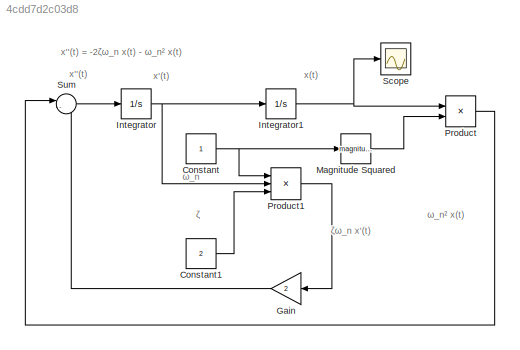
MODEL slx_4cdd7d2c03d8
KIND model
CONFIG AbsTol = auto
CONFIG EnableMultiTasking = off
CONFIG FixedStep = auto
CONFIG MaxStep = auto
CONFIG MinStep = auto
CONFIG RelTol = 1e-3
CONFIG SampleTimeConstraint = Unconstrained
CONFIG SolverName = VariableStepAuto
CONFIG StartTime = 0.0
CONFIG StopTime = 10.0
BLOCK [Constant] Constant
BLOCK [Constant] Constant1
  Value = 2
BLOCK [Gain] Gain
  Gain = 2
BLOCK [Integrator] Integrator
BLOCK [Integrator] Integrator1
  InitialCondition = 5
BLOCK [Math] Magnitude Squared
  Operator = magnitude^2
BLOCK [Product] Product
BLOCK [Product] Product1
  Inputs = 3
BLOCK [Scope] Scope
  Floating = off
  NumInputPorts = 1
  ScopeSpecificationString = Simulink.scopes.TimeScopeBlockCfg('CurrentConfiguration', extmgr.ConfigurationSet(extmgr.Configuration('Core','General UI',true),extmgr.Configuration('Core','Source UI',true),extmgr.Configuration('Sources','WiredSimulink',true),extmgr.Configuration('Visuals','Time Domain',true,'SerializedDisplays',{struct('MinYLimReal','-1.00000','MaxYLimReal','1.00000','YLabelReal','','MinYLimMag','0.00000','MaxY...<+1331ch>
BLOCK [Sum] Sum
  Inputs = |--
ANNOTATION (root): x''(t)
ANNOTATION (root): x''(t) = -2ζω_n x(t) - ω_n² x(t)
ANNOTATION (root): x'(t)
ANNOTATION (root): x(t)
ANNOTATION (root): ζ
ANNOTATION (root): ζω_n x'(t)
ANNOTATION (root): ω_n
ANNOTATION (root): ω_n² x(t)
LINE Constant1:1 -> Product1:3
NET Constant:1 -> Magnitude Squared:1, Product1:1
LINE Gain:1 -> Sum:2
NET Integrator1:1 -> Product:1, Scope:1
NET Integrator:1 -> Integrator1:1, Product1:2
LINE Magnitude Squared:1 -> Product:2
LINE Product1:1 -> Gain:1
LINE Product:1 -> Sum:1
LINE Sum:1 -> Integrator:1
note: NET lines group one-source signal fan-out (src -> all destinations, sorted); 1:1 wires keep LINE
